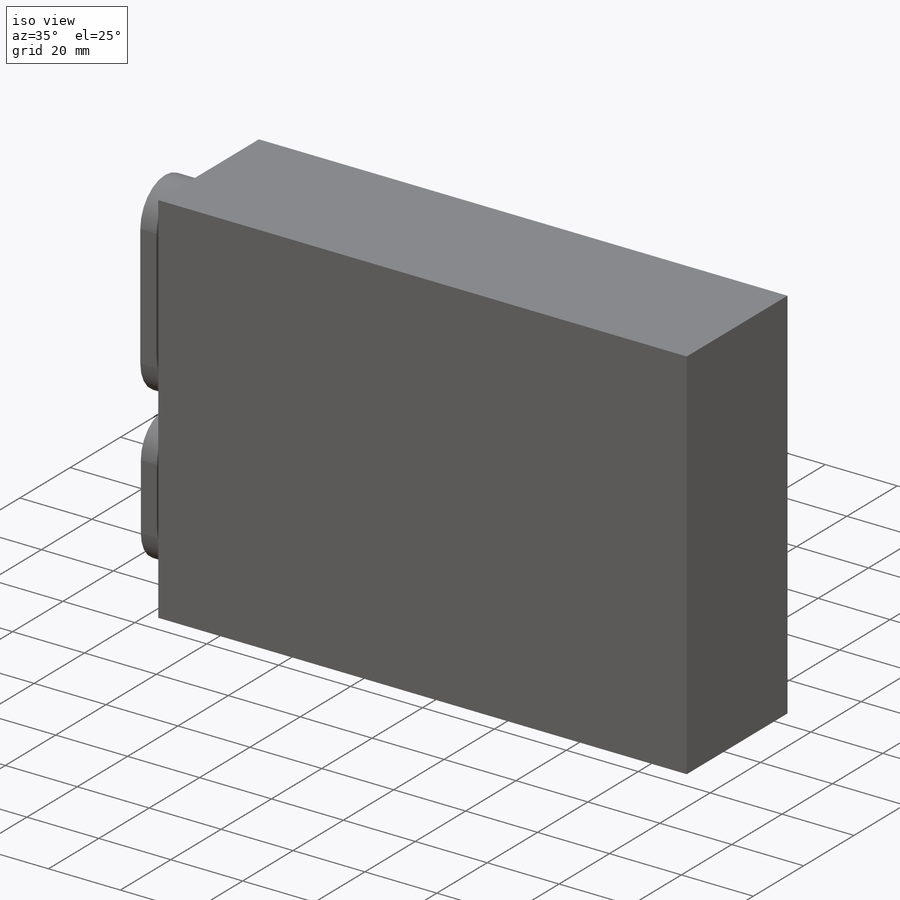
[diagram: iso view]
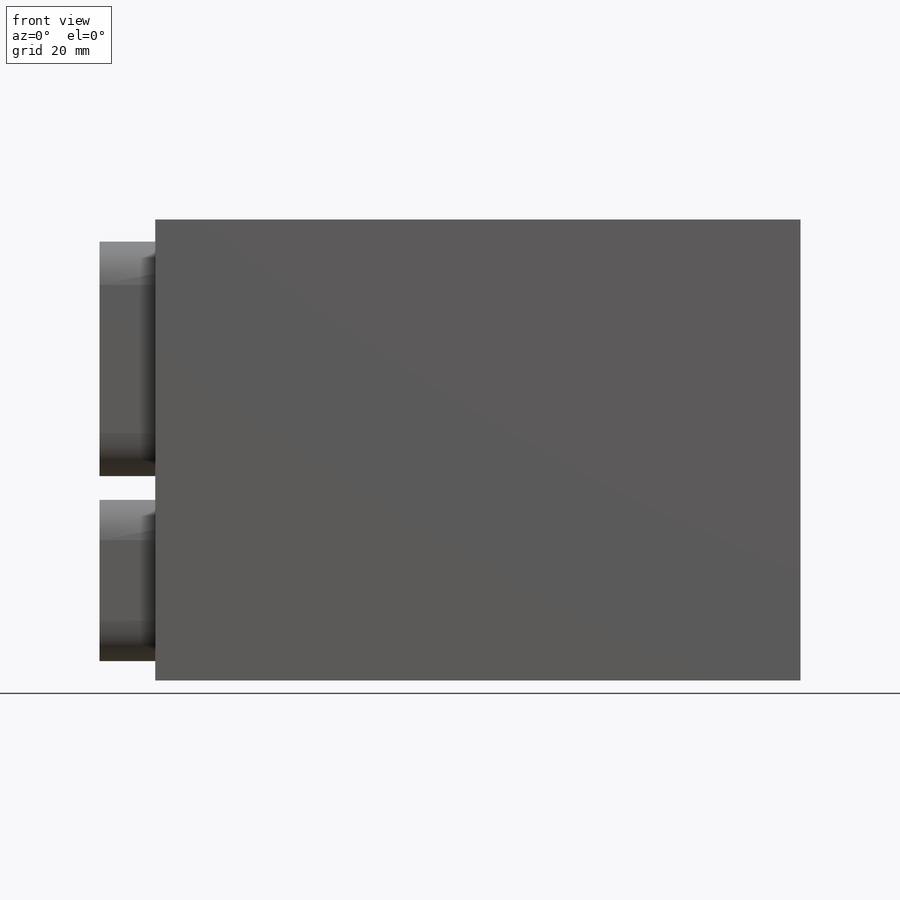
[diagram: front view]
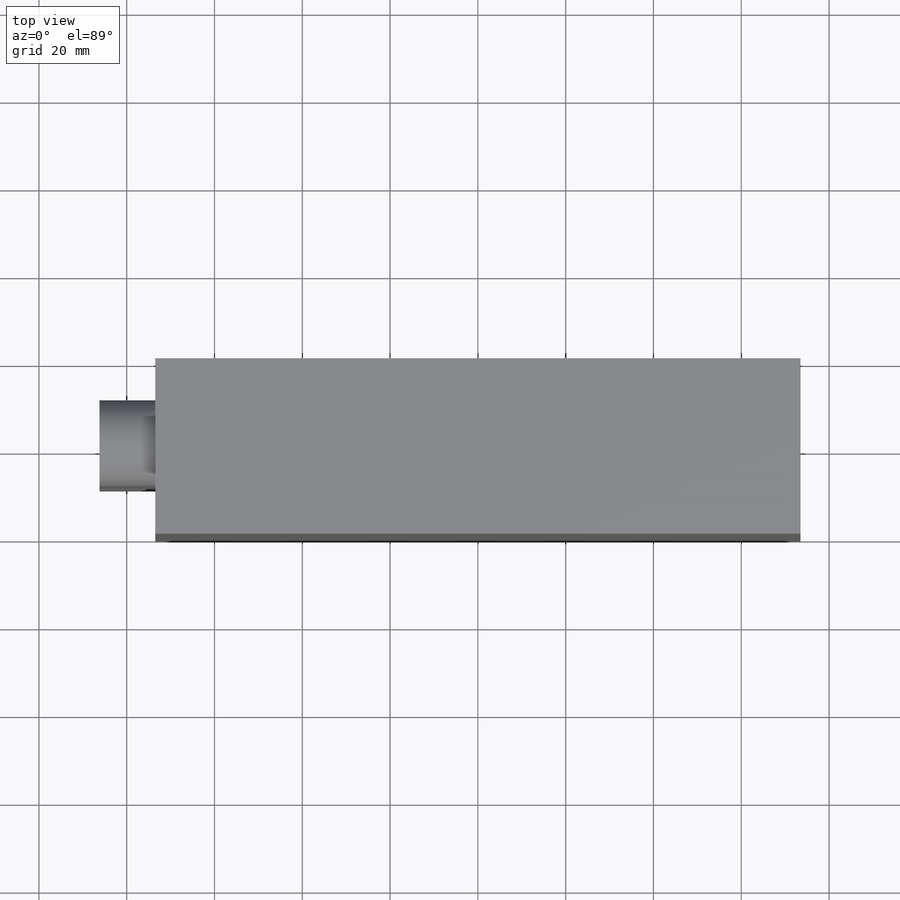
[diagram: top view]
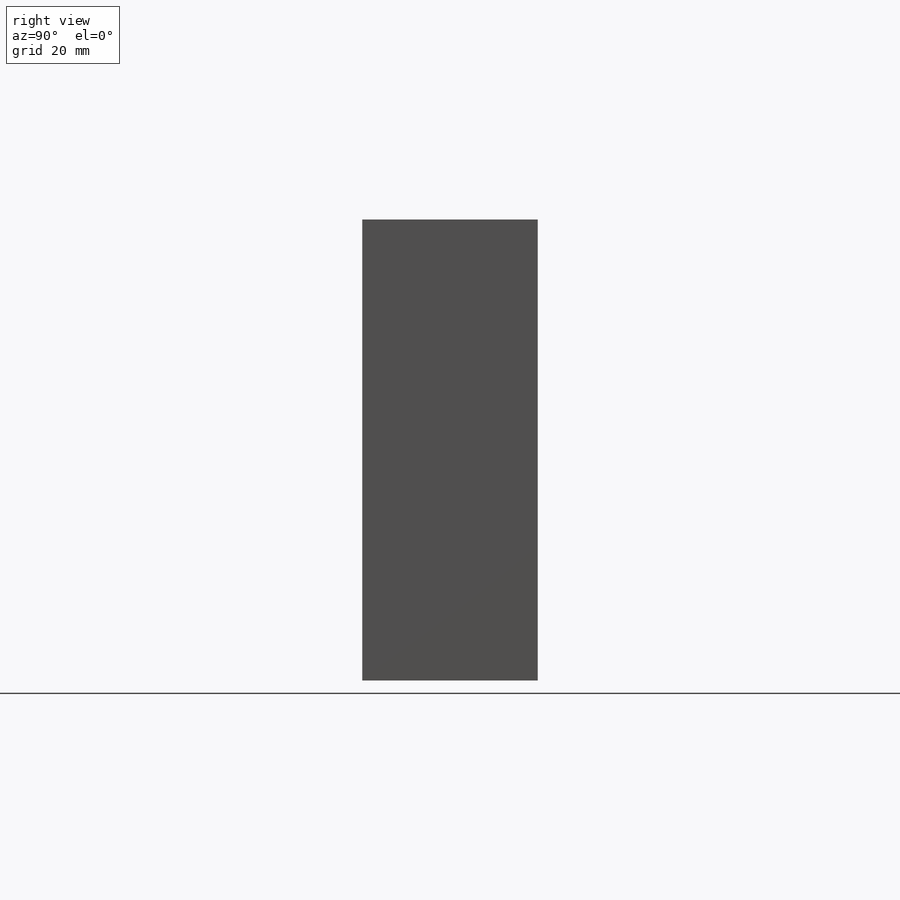
[diagram: right view]
SOLIDWORKS PART (.sldprt)
format: sldprt  version: not decoded by parser v0  size: 155,136 bytes
history: native  units: mm
features: sketch x5, extrude x3, cut_extrude x2, material x1 (+11 scaffold rows collapsed)
feature tree (22):
  scaffold x11  (default folders/planes/origin — collapsed)
  material  "Material <not specified>"
  sketch  "Sketch1"  dims[D1=147.0mm]
  extrude  "Boss-Extrude4"  Depth=40mm
  sketch  "Sketch6"
  extrude  "Boss-Extrude5"  Depth=12.7mm
  sketch  "Sketch7"
  cut_extrude  "Cut-Extrude3"  Depth=10.16mm
  sketch  "Sketch8"
  extrude  "Boss-Extrude6"  Depth=12.7mm
  sketch  "Sketch9"
  cut_extrude  "Cut-Extrude4"  Depth=10.16mm
decode coverage: 6 of 10 modeling features carry decoded parameters
note: suppression state not decoded; provenance and decode notes live in map.json
